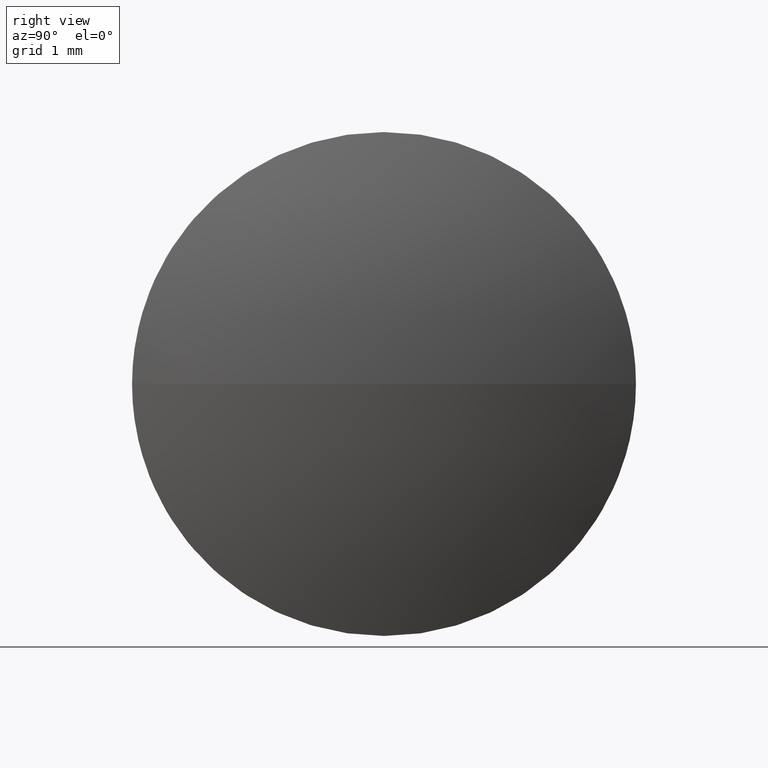
[diagram: clean part render]
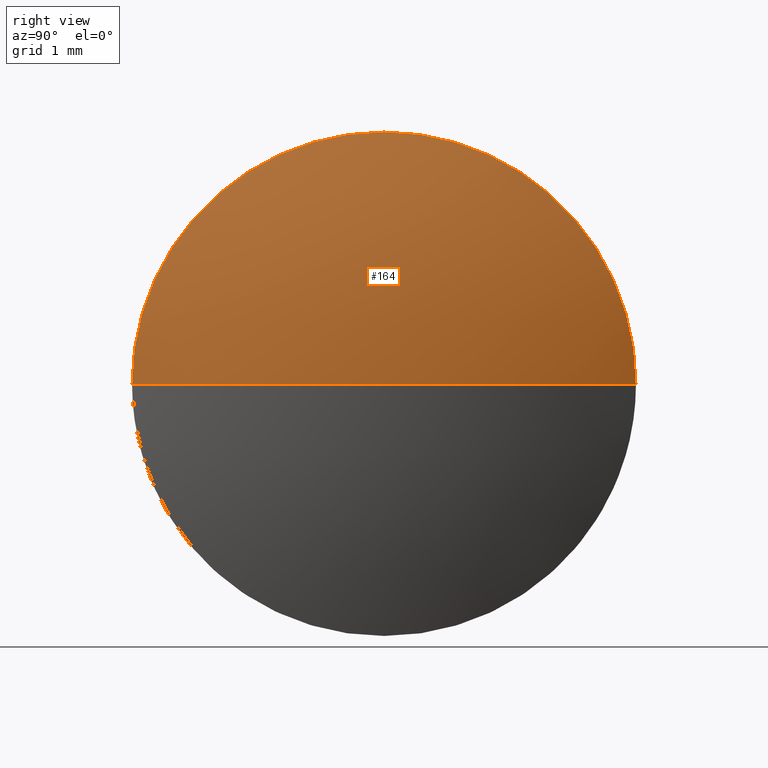
[diagram: same view with one face highlighted and labeled with its STEP entity id]
A machine part, right view. The second image highlights one B-rep face of the part: STEP entity #164.
In plain terms, the highlighted spherical surface has radius 9.1394 mm.
Its self-contained STEP definition (entity closure, byte-faithful):
#3 = DIRECTION ( 'NONE',  ( 1.000000000000000000, 0.0000000000000000000, 0.0000000000000000000 ) ) ;
#9 = EDGE_CURVE ( 'NONE', #101, #160, #153, .T. ) ;
#10 = DIRECTION ( 'NONE',  ( 0.0000000000000000000, 1.000000000000000000, 1.224646799147353000E-016 ) ) ;
#12 = VERTEX_POINT ( 'NONE', #18 ) ;
#18 = CARTESIAN_POINT ( 'NONE',  ( 439.4198361449435900, 7.406328338348058300, -3.857637417314170600E-016 ) ) ;
#23 = CARTESIAN_POINT ( 'NONE',  ( 439.9798361449435900, 10.55632833834806500, 0.0000000000000000000 ) ) ;
#25 = AXIS2_PLACEMENT_3D ( 'NONE', #81, #116, #3 ) ;
#37 = DIRECTION ( 'NONE',  ( -1.000000000000000000, -0.0000000000000000000, -0.0000000000000000000 ) ) ;
#38 = ORIENTED_EDGE ( 'NONE', *, *, #186, .F. ) ;
#55 = DIRECTION ( 'NONE',  ( -0.0000000000000000000, 0.0000000000000000000, -1.000000000000000000 ) ) ;
#62 = ORIENTED_EDGE ( 'NONE', *, *, #165, .F. ) ;
#70 = CARTESIAN_POINT ( 'NONE',  ( 430.8404611449435000, 10.55632833834806500, 0.0000000000000000000 ) ) ;
#71 = CARTESIAN_POINT ( 'NONE',  ( 439.4198361449435900, 10.55632833834806700, 0.0000000000000000000 ) ) ;
#72 = EDGE_LOOP ( 'NONE', ( #38, #177, #62, #180 ) ) ;
#80 = CIRCLE ( 'NONE', #171, 3.149999999999999900 ) ;
#81 = CARTESIAN_POINT ( 'NONE',  ( 430.8404611449435000, 10.55632833834806500, 0.0000000000000000000 ) ) ;
#93 = SPHERICAL_SURFACE ( 'NONE', #123, 9.139375000000058000 ) ;
#98 = DIRECTION ( 'NONE',  ( 0.0000000000000000000, 1.000000000000000000, 0.0000000000000000000 ) ) ;
#99 = VERTEX_POINT ( 'NONE', #134 ) ;
#101 = VERTEX_POINT ( 'NONE', #23 ) ;
#102 = AXIS2_PLACEMENT_3D ( 'NONE', #170, #128, #10 ) ;
#103 = AXIS2_PLACEMENT_3D ( 'NONE', #120, #139, #136 ) ;
#107 = CARTESIAN_POINT ( 'NONE',  ( 439.4198361449435900, 13.70632833834807200, 0.0000000000000000000 ) ) ;
#111 = CIRCLE ( 'NONE', #103, 3.149999999999999900 ) ;
#116 = DIRECTION ( 'NONE',  ( -0.0000000000000000000, 0.0000000000000000000, 1.000000000000000000 ) ) ;
#120 = CARTESIAN_POINT ( 'NONE',  ( 439.4198361449435900, 10.55632833834806700, 0.0000000000000000000 ) ) ;
#123 = AXIS2_PLACEMENT_3D ( 'NONE', #70, #55, #98 ) ;
#128 = DIRECTION ( 'NONE',  ( 0.0000000000000000000, 1.224646799147353200E-016, -1.000000000000000000 ) ) ;
#132 = CIRCLE ( 'NONE', #102, 9.139375000000058000 ) ;
#134 = CARTESIAN_POINT ( 'NONE',  ( 439.4198361449435900, 10.55632833834806700, 3.149999999999999900 ) ) ;
#136 = DIRECTION ( 'NONE',  ( 0.0000000000000000000, 0.0000000000000000000, 1.000000000000000000 ) ) ;
#139 = DIRECTION ( 'NONE',  ( -1.000000000000000000, -0.0000000000000000000, -0.0000000000000000000 ) ) ;
#149 = EDGE_CURVE ( 'NONE', #12, #99, #111, .T. ) ;
#153 = CIRCLE ( 'NONE', #25, 9.139375000000061500 ) ;
#155 = FACE_OUTER_BOUND ( 'NONE', #72, .T. ) ;
#160 = VERTEX_POINT ( 'NONE', #107 ) ;
#163 = DIRECTION ( 'NONE',  ( 0.0000000000000000000, 0.0000000000000000000, 1.000000000000000000 ) ) ;
#164 = ADVANCED_FACE ( 'NONE', ( #155 ), #93, .T. ) ;
#165 = EDGE_CURVE ( 'NONE', #99, #160, #80, .T. ) ;
#170 = CARTESIAN_POINT ( 'NONE',  ( 430.8404611449435000, 10.55632833834806500, 0.0000000000000000000 ) ) ;
#171 = AXIS2_PLACEMENT_3D ( 'NONE', #71, #37, #163 ) ;
#177 = ORIENTED_EDGE ( 'NONE', *, *, #9, .T. ) ;
#180 = ORIENTED_EDGE ( 'NONE', *, *, #149, .F. ) ;
#186 = EDGE_CURVE ( 'NONE', #101, #12, #132, .T. ) ;